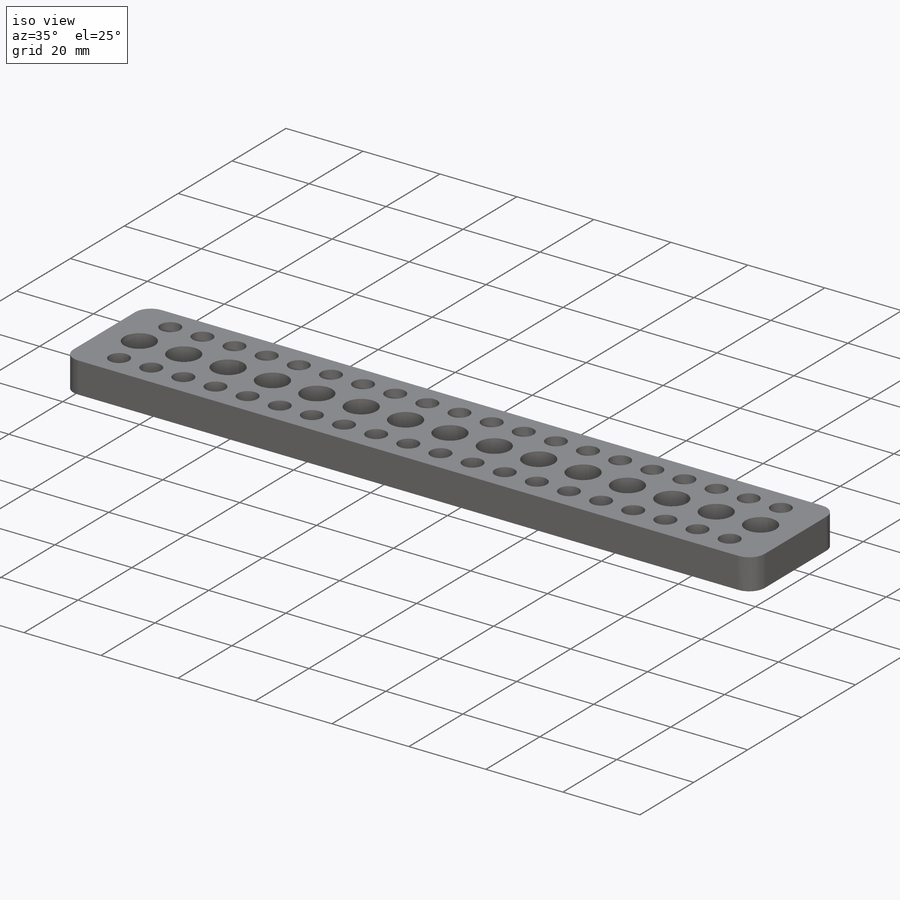
[diagram: iso view]
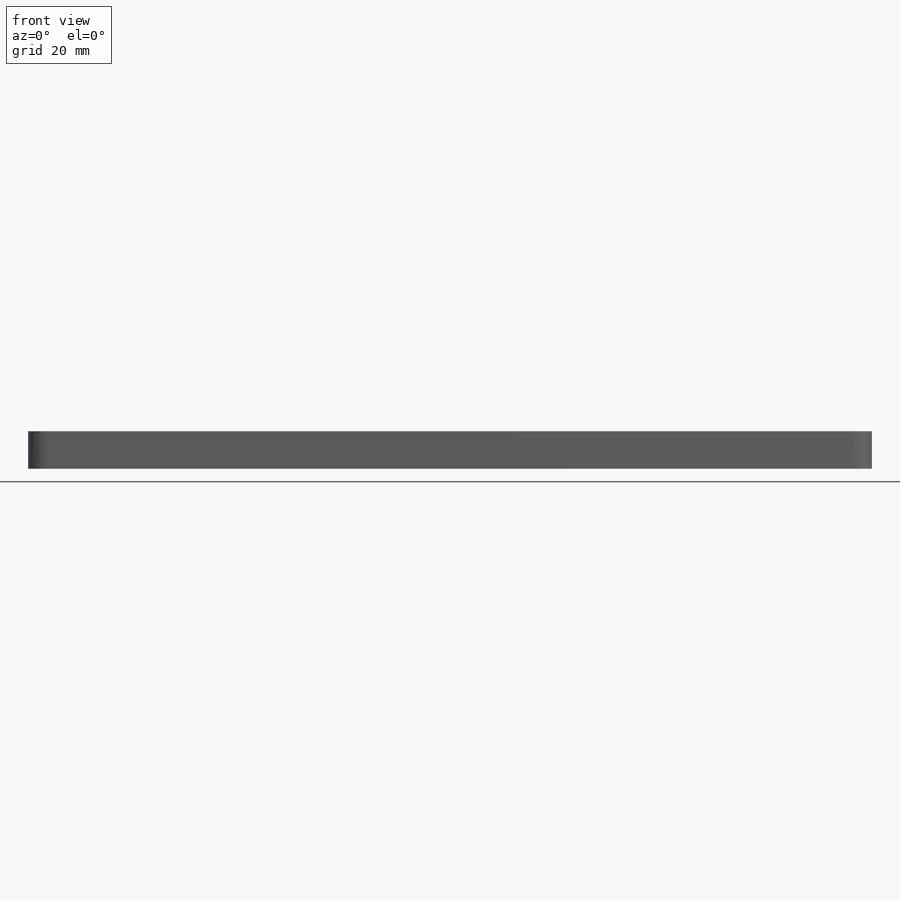
[diagram: front view]
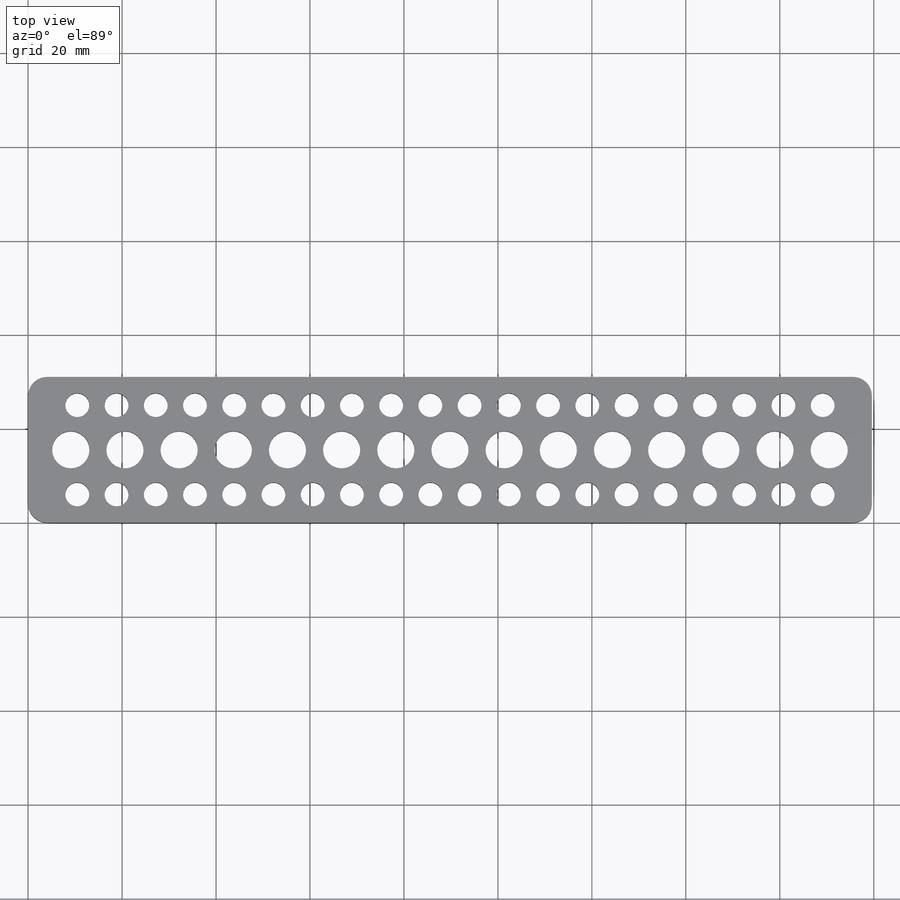
[diagram: top view]
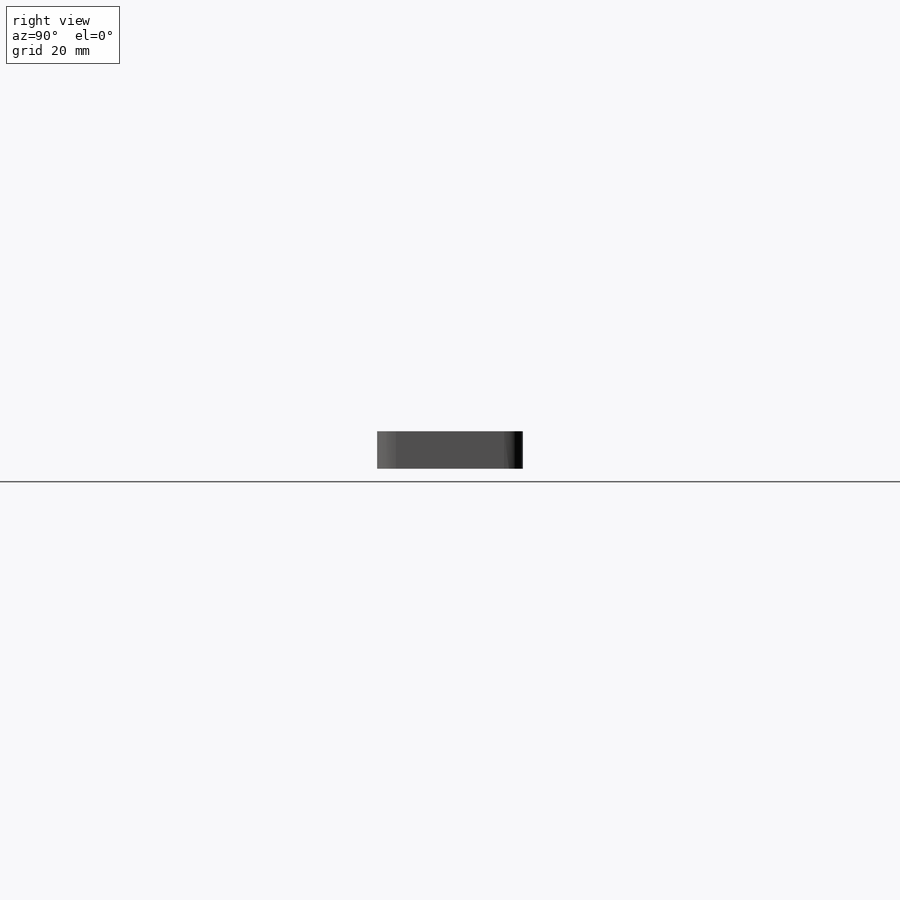
[diagram: right view]
SOLIDWORKS PART (.sldprt)
format: sldprt  version: not decoded by parser v0  size: 649,216 bytes
history: native  units: mm
features: thread x55, sketch x5, hole x2, material x1, extrude x1, fillet x1 (+11 scaffold rows collapsed)
feature tree (76):
  scaffold x11  (default folders/planes/origin — collapsed)
  material  "3.1355 (EN-AW 2024)"
  sketch  "Эскиз1"  dims[c1.D1=8.35mm c1.D3=10.475mm c1.D4=11.525mm c1.D5=9.095mm c1.D7=9.5mm c1.D8=6.0mm c1.D9=7.5mm c1.D10=23.0mm c2.D9=31.0mm c2.D10=6.0mm c2.D11=179.605mm c2.D12=10.48mm c2.D2=20.0 c2.D6=15.0]
  extrude  "Бобышка-Вытянуть1"  Depth=8mm
  hole  "Отверстие обработанное метчиком 1/4-201"  [1 undecoded]
  sketch  "Эскиз3"
  sketch  "Эскиз2"  dims[hole-wizard template sketch: 60 standard entries collapsed; hole parameters kept: c18.Глубина проходного сверла=8.0mm]
  thread  "Отверстие резьбы1"  Diameter=6.35mm  [1 undecoded]
  thread  "Отверстие резьбы2"  Diameter=6.35mm  [1 undecoded]
  thread  "Отверстие резьбы3"  Diameter=6.35mm  [1 undecoded]
  thread  "Отверстие резьбы4"  Diameter=6.35mm  [1 undecoded]
  thread  "Отверстие резьбы5"  Diameter=6.35mm  [1 undecoded]
  thread  "Отверстие резьбы6"  Diameter=6.35mm  [1 undecoded]
  thread  "Отверстие резьбы7"  Diameter=6.35mm  [1 undecoded]
  thread  "Отверстие резьбы8"  Diameter=6.35mm  [1 undecoded]
  thread  "Отверстие резьбы9"  Diameter=6.35mm  [1 undecoded]
  thread  "Отверстие резьбы10"  Diameter=6.35mm  [1 undecoded]
  thread  "Отверстие резьбы11"  Diameter=6.35mm  [1 undecoded]
  thread  "Отверстие резьбы12"  Diameter=6.35mm  [1 undecoded]
  thread  "Отверстие резьбы13"  Diameter=6.35mm  [1 undecoded]
  thread  "Отверстие резьбы14"  Diameter=6.35mm  [1 undecoded]
  thread  "Отверстие резьбы15"  Diameter=6.35mm  [1 undecoded]
  thread  "Отверстие резьбы16"  Diameter=6.35mm  [1 undecoded]
  thread  "Отверстие резьбы17"  Diameter=6.35mm  [1 undecoded]
  thread  "Отверстие резьбы18"  Diameter=6.35mm  [1 undecoded]
  thread  "Отверстие резьбы19"  Diameter=6.35mm  [1 undecoded]
  thread  "Отверстие резьбы20"  Diameter=6.35mm  [1 undecoded]
  thread  "Отверстие резьбы21"  Diameter=6.35mm  [1 undecoded]
  thread  "Отверстие резьбы22"  Diameter=6.35mm  [1 undecoded]
  thread  "Отверстие резьбы23"  Diameter=6.35mm  [1 undecoded]
  thread  "Отверстие резьбы24"  Diameter=6.35mm  [1 undecoded]
  thread  "Отверстие резьбы25"  Diameter=6.35mm  [1 undecoded]
  thread  "Отверстие резьбы26"  Diameter=6.35mm  [1 undecoded]
  thread  "Отверстие резьбы27"  Diameter=6.35mm  [1 undecoded]
  thread  "Отверстие резьбы28"  Diameter=6.35mm  [1 undecoded]
  thread  "Отверстие резьбы29"  Diameter=6.35mm  [1 undecoded]
  thread  "Отверстие резьбы30"  Diameter=6.35mm  [1 undecoded]
  thread  "Отверстие резьбы31"  Diameter=6.35mm  [1 undecoded]
  thread  "Отверстие резьбы32"  Diameter=6.35mm  [1 undecoded]
  thread  "Отверстие резьбы33"  Diameter=6.35mm  [1 undecoded]
  thread  "Отверстие резьбы34"  Diameter=6.35mm  [1 undecoded]
  thread  "Отверстие резьбы35"  Diameter=6.35mm  [1 undecoded]
  thread  "Отверстие резьбы36"  Diameter=6.35mm  [1 undecoded]
  thread  "Отверстие резьбы37"  Diameter=6.35mm  [1 undecoded]
  thread  "Отверстие резьбы38"  Diameter=6.35mm  [1 undecoded]
  thread  "Отверстие резьбы39"  Diameter=6.35mm  [1 undecoded]
  thread  "Отверстие резьбы40"  Diameter=6.35mm  [1 undecoded]
  hole  "Отверстие обработанное метчиком 3/8-161"  [1 undecoded]
  sketch  "Эскиз5"
  sketch  "Эскиз4"  dims[hole-wizard template sketch: 59 standard entries collapsed; hole parameters kept: c18.Диаметр проходного сверла=7.9375mm c18.Глубина проходного сверла=8.0mm]
  thread  "Отверстие резьбы41"  Diameter=9.525mm  [1 undecoded]
  thread  "Отверстие резьбы42"  Diameter=9.525mm  [1 undecoded]
  thread  "Отверстие резьбы43"  Diameter=9.525mm  [1 undecoded]
  thread  "Отверстие резьбы44"  Diameter=9.525mm  [1 undecoded]
  thread  "Отверстие резьбы45"  Diameter=9.525mm  [1 undecoded]
  thread  "Отверстие резьбы46"  Diameter=9.525mm  [1 undecoded]
  thread  "Отверстие резьбы47"  Diameter=9.525mm  [1 undecoded]
  thread  "Отверстие резьбы48"  Diameter=9.525mm  [1 undecoded]
  thread  "Отверстие резьбы49"  Diameter=9.525mm  [1 undecoded]
  thread  "Отверстие резьбы50"  Diameter=9.525mm  [1 undecoded]
  thread  "Отверстие резьбы51"  Diameter=9.525mm  [1 undecoded]
  thread  "Отверстие резьбы52"  Diameter=9.525mm  [1 undecoded]
  thread  "Отверстие резьбы53"  Diameter=9.525mm  [1 undecoded]
  thread  "Отверстие резьбы54"  Diameter=9.525mm  [1 undecoded]
  thread  "Отверстие резьбы55"  Diameter=9.525mm  [1 undecoded]
  fillet  "Скругление1"  Radius=4mm
decode coverage: 60 of 64 modeling features carry decoded parameters
note: ~ marks probable driven/reference dimensions
note: 57 parameter values undecoded
note: suppression state not decoded; provenance and decode notes live in map.json
